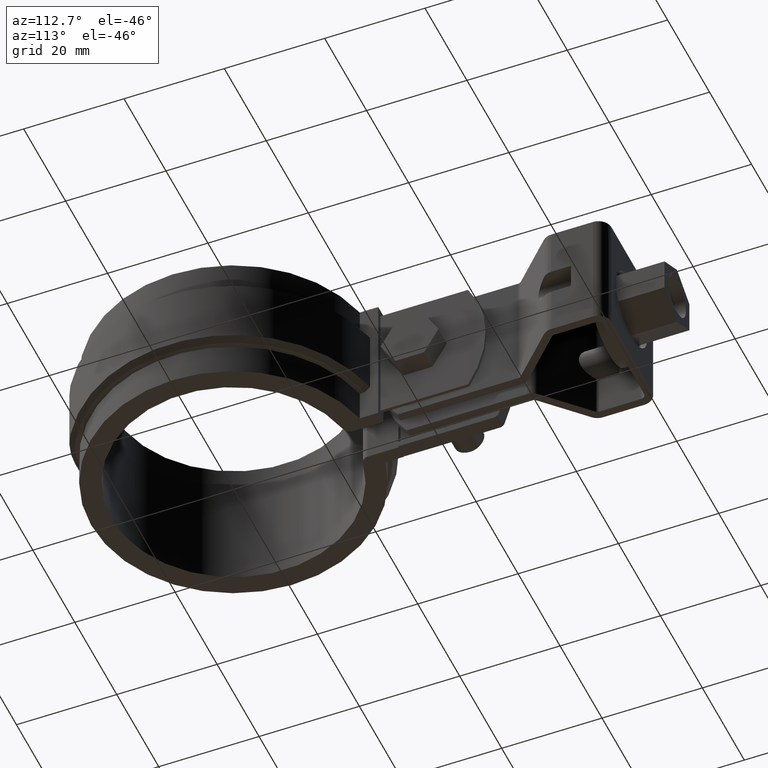
[diagram: clean part render]
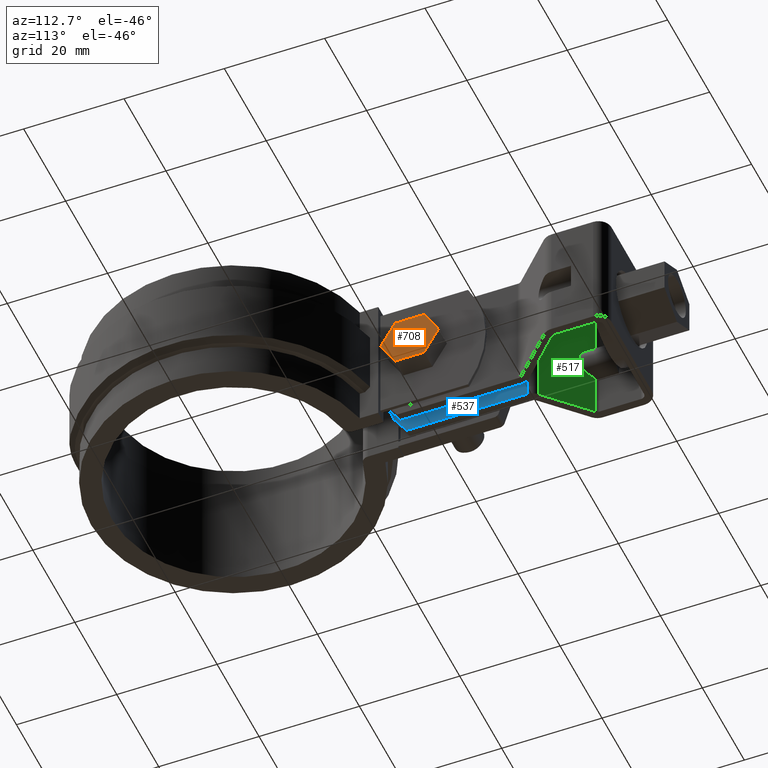
[diagram: same view with three faces highlighted in distinct colors, each labeled with its STEP entity id]
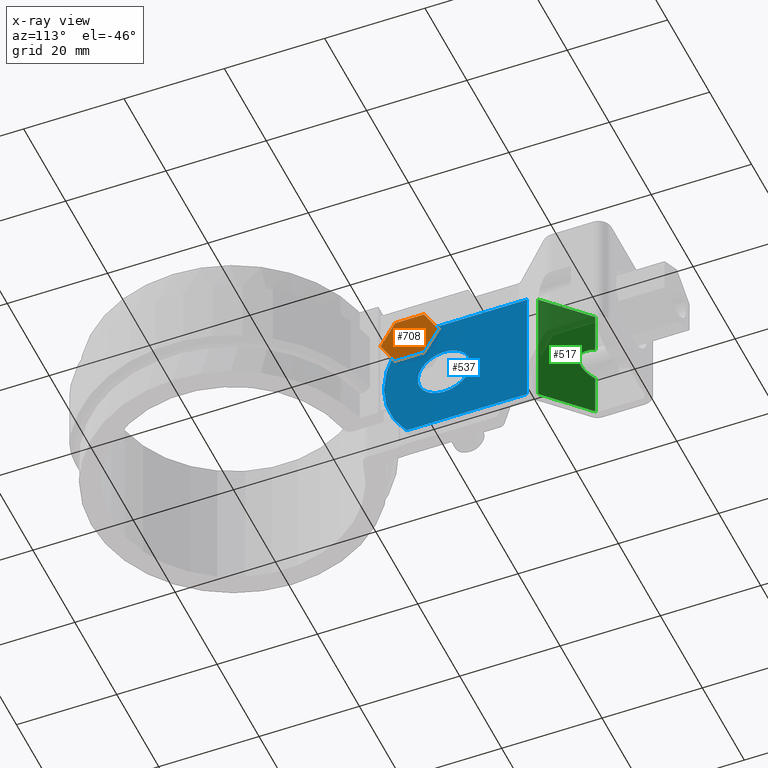
[diagram: x-ray of the same camera — body ghosted, the three highlighted faces saturated]
A machine part, auxiliary view with three faces highlighted in distinct colors.
The next image is the same camera in x-ray (body ghosted, the three faces saturated) — at least one of them is partly hidden behind the body in this view.
Their STEP definitions:

[orange] entity #708 — the highlighted planar face has unit normal (-1, 0, 0).
#708 = ADVANCED_FACE( '', ( #1454 ), #1455, .F. );
#1454 = FACE_OUTER_BOUND( '', #2971, .T. );
#1455 = PLANE( '', #2972 );
#2971 = EDGE_LOOP( '', ( #7569, #7570, #7571, #7572, #7573, #7574 ) );
#2972 = AXIS2_PLACEMENT_3D( '', #7575, #7576, #7577 );
#7569 = ORIENTED_EDGE( '', *, *, #8615, .T. );
#7570 = ORIENTED_EDGE( '', *, *, #8616, .T. );
#7571 = ORIENTED_EDGE( '', *, *, #8617, .T. );
#7572 = ORIENTED_EDGE( '', *, *, #8618, .T. );
#7573 = ORIENTED_EDGE( '', *, *, #8619, .T. );
#7574 = ORIENTED_EDGE( '', *, *, #8620, .T. );
#7575 = CARTESIAN_POINT( '', ( 9.10000000000000, 47.5647811934519, -7.50000000000000 ) );
#7576 = DIRECTION( '', ( -1.00000000000000, 1.30506089359675E-053, 4.17619485952193E-053 ) );
#7577 = DIRECTION( '', ( 1.30506089359675E-053, 1.00000000000000, 0.000000000000000 ) );
#8615 = EDGE_CURVE( '', #10263, #10264, #10265, .T. );
#8616 = EDGE_CURVE( '', #10264, #10266, #10267, .T. );
#8617 = EDGE_CURVE( '', #10266, #10268, #10269, .T. );
#8618 = EDGE_CURVE( '', #10268, #10270, #10271, .T. );
#8619 = EDGE_CURVE( '', #10270, #10272, #10273, .T. );
#8620 = EDGE_CURVE( '', #10272, #10263, #10274, .T. );
#10263 = VERTEX_POINT( '', #14867 );
#10264 = VERTEX_POINT( '', #14868 );
#10265 = LINE( '', #14869, #14870 );
#10266 = VERTEX_POINT( '', #14871 );
#10267 = LINE( '', #14872, #14873 );
#10268 = VERTEX_POINT( '', #14874 );
#10269 = LINE( '', #14875, #14876 );
#10270 = VERTEX_POINT( '', #14877 );
#10271 = LINE( '', #14878, #14879 );
#10272 = VERTEX_POINT( '', #14880 );
#10273 = LINE( '', #14881, #14882 );
#10274 = LINE( '', #14883, #14884 );
#14867 = CARTESIAN_POINT( '', ( 9.10000000000000, 41.7912785015556, -7.50000000000000 ) );
#14868 = CARTESIAN_POINT( '', ( 9.10000000000000, 36.0177758096594, -7.50000000000000 ) );
#14869 = CARTESIAN_POINT( '', ( 9.10000000000000, 41.7912785015556, -7.50000000000000 ) );
#14870 = VECTOR( '', #16120, 1000.00000000000 );
#14871 = CARTESIAN_POINT( '', ( 9.10000000000000, 33.1310244637112, -12.5000000000000 ) );
#14872 = CARTESIAN_POINT( '', ( 9.10000000000000, 36.0177758096594, -7.50000000000000 ) );
#14873 = VECTOR( '', #16121, 1000.00000000000 );
#14874 = CARTESIAN_POINT( '', ( 9.10000000000000, 36.0177758096594, -17.5000000000000 ) );
#14875 = CARTESIAN_POINT( '', ( 9.10000000000000, 33.1310244637112, -12.5000000000000 ) );
#14876 = VECTOR( '', #16122, 1000.00000000000 );
#14877 = CARTESIAN_POINT( '', ( 9.10000000000000, 41.7912785015556, -17.5000000000000 ) );
#14878 = CARTESIAN_POINT( '', ( 9.10000000000000, 36.0177758096594, -17.5000000000000 ) );
#14879 = VECTOR( '', #16123, 1000.00000000000 );
#14880 = CARTESIAN_POINT( '', ( 9.10000000000000, 44.6780298475038, -12.5000000000000 ) );
#14881 = CARTESIAN_POINT( '', ( 9.10000000000000, 41.7912785015556, -17.5000000000000 ) );
#14882 = VECTOR( '', #16124, 1000.00000000000 );
#14883 = CARTESIAN_POINT( '', ( 9.10000000000000, 44.6780298475038, -12.5000000000000 ) );
#14884 = VECTOR( '', #16125, 1000.00000000000 );
#16120 = DIRECTION( '', ( -1.30506089359675E-053, -1.00000000000000, -4.93038065763132E-032 ) );
#16121 = DIRECTION( '', ( -4.26922128629835E-053, -0.500000000000000, -0.866025403784439 ) );
#16122 = DIRECTION( '', ( -2.96416039270160E-053, 0.500000000000000, -0.866025403784438 ) );
#16123 = DIRECTION( '', ( 1.30506089359675E-053, 1.00000000000000, 3.00462919747432E-016 ) );
#16124 = DIRECTION( '', ( 4.26922128629835E-053, 0.500000000000000, 0.866025403784439 ) );
#16125 = DIRECTION( '', ( 2.96416039270160E-053, -0.500000000000000, 0.866025403784438 ) );

[blue] entity #537 — the highlighted planar face has unit normal (1, -0, -0).
#537 = ADVANCED_FACE( '', ( #1080, #1081 ), #1082, .T. );
#1080 = FACE_OUTER_BOUND( '', #2465, .T. );
#1081 = FACE_BOUND( '', #2466, .T. );
#1082 = PLANE( '', #2467 );
#2465 = EDGE_LOOP( '', ( #6156, #6157, #6158, #6159 ) );
#2466 = EDGE_LOOP( '', ( #6160 ) );
#2467 = AXIS2_PLACEMENT_3D( '', #6161, #6162, #6163 );
#6156 = ORIENTED_EDGE( '', *, *, #8095, .T. );
#6157 = ORIENTED_EDGE( '', *, *, #8174, .T. );
#6158 = ORIENTED_EDGE( '', *, *, #8062, .F. );
#6159 = ORIENTED_EDGE( '', *, *, #8175, .T. );
#6160 = ORIENTED_EDGE( '', *, *, #8176, .T. );
#6161 = CARTESIAN_POINT( '', ( -1.40000000052968, 29.4045271017870, -25.0000000461929 ) );
#6162 = DIRECTION( '', ( 1.00000000000000, -7.06610602874522E-024, -2.03772028768486E-012 ) );
#6163 = DIRECTION( '', ( 0.000000000000000, 1.00000000000000, -3.46765258777167E-012 ) );
#8062 = EDGE_CURVE( '', #9341, #9342, #9343, .F. );
#8095 = EDGE_CURVE( '', #9407, #9405, #9408, .T. );
#8174 = EDGE_CURVE( '', #9405, #9342, #9535, .T. );
#8175 = EDGE_CURVE( '', #9341, #9407, #9536, .T. );
#8176 = EDGE_CURVE( '', #9537, #9537, #9538, .F. );
#9341 = VERTEX_POINT( '', #13451 );
#9342 = VERTEX_POINT( '', #13452 );
#9343 = LINE( '', #13453, #13454 );
#9405 = VERTEX_POINT( '', #13534 );
#9407 = VERTEX_POINT( '', #13536 );
#9408 = LINE( '', #13537, #13538 );
#9535 = LINE( '', #13749, #13750 );
#9536 = CIRCLE( '', #13751, 19.6111110000000 );
#9537 = VERTEX_POINT( '', #13752 );
#9538 = CIRCLE( '', #13753, 5.25000000000000 );
#13451 = CARTESIAN_POINT( '', ( -1.40000000047874, 33.9045271475964, -4.84827106257089E-008 ) );
#13452 = CARTESIAN_POINT( '', ( -1.40000000052825, 57.9586734887999, -6.07228087597351E-008 ) );
#13453 = CARTESIAN_POINT( '', ( -1.40000000047874, 76.8045271144796, -7.03126354039465E-008 ) );
#13454 = VECTOR( '', #15333, 1000.00000000000 );
#13534 = CARTESIAN_POINT( '', ( -1.40000000057919, 57.9586734760785, -25.0000000607228 ) );
#13536 = CARTESIAN_POINT( '', ( -1.40000000052968, 33.9045271348750, -25.0000000484827 ) );
#13537 = CARTESIAN_POINT( '', ( -1.40000000052968, 29.4045271017870, -25.0000000461928 ) );
#13538 = VECTOR( '', #15394, 1000.00000000000 );
#13749 = CARTESIAN_POINT( '', ( -1.40000000062870, 57.9586734760830, -25.0000000607228 ) );
#13750 = VECTOR( '', #15520, 1000.00000000000 );
#13751 = AXIS2_PLACEMENT_3D( '', #15521, #15522, #15523 );
#13752 = CARTESIAN_POINT( '', ( -1.40000000051490, 41.4045271081475, -17.7500000522991 ) );
#13753 = AXIS2_PLACEMENT_3D( '', #15524, #15525, #15526 );
#15333 = DIRECTION( '', ( 1.02984022804732E-021, -1.00000000000000, 5.08856068393049E-010 ) );
#15394 = DIRECTION( '', ( -1.02984022804732E-021, 1.00000000000000, -5.08856068393049E-010 ) );
#15520 = DIRECTION( '', ( 2.03772028593234E-012, 5.08856008656157E-010, 1.00000000000000 ) );
#15521 = CARTESIAN_POINT( '', ( -1.40000000050421, 49.0156381081475, -12.5000000561720 ) );
#15522 = DIRECTION( '', ( 1.00000000000000, -7.06610602874522E-024, -2.03772028768486E-012 ) );
#15523 = DIRECTION( '', ( -2.03772028768486E-012, 0.000000000000000, -1.00000000000000 ) );
#15524 = CARTESIAN_POINT( '', ( -1.40000000050421, 41.4045271081475, -12.5000000522991 ) );
#15525 = DIRECTION( '', ( 1.00000000000000, -7.06610602874522E-024, -2.03772028768486E-012 ) );
#15526 = DIRECTION( '', ( -2.03772028768486E-012, 0.000000000000000, -1.00000000000000 ) );

[green] entity #517 — the highlighted planar face has unit normal (0.6983, 0.7158, -0).
#517 = ADVANCED_FACE( '', ( #1036 ), #1037, .T. );
#1036 = FACE_OUTER_BOUND( '', #2421, .T. );
#1037 = PLANE( '', #2422 );
#2421 = EDGE_LOOP( '', ( #6004, #6005, #6006, #6007, #6008, #6009 ) );
#2422 = AXIS2_PLACEMENT_3D( '', #6010, #6011, #6012 );
#6004 = ORIENTED_EDGE( '', *, *, #8064, .T. );
#6005 = ORIENTED_EDGE( '', *, *, #8136, .T. );
#6006 = ORIENTED_EDGE( '', *, *, #8093, .F. );
#6007 = ORIENTED_EDGE( '', *, *, #8137, .F. );
#6008 = ORIENTED_EDGE( '', *, *, #8138, .F. );
#6009 = ORIENTED_EDGE( '', *, *, #8139, .F. );
#6010 = CARTESIAN_POINT( '', ( -10.3483238361423, 67.7845509188487, -6.57045390317634E-008 ) );
#6011 = DIRECTION( '', ( 0.698323835528018, 0.715781964520927, -3.65652942179987E-010 ) );
#6012 = DIRECTION( '', ( -5.23615153281298E-010, -3.70050602416769E-026, -1.00000000000000 ) );
#8064 = EDGE_CURVE( '', #9346, #9344, #9347, .F. );
#8093 = EDGE_CURVE( '', #9402, #9403, #9404, .T. );
#8136 = EDGE_CURVE( '', #9344, #9403, #9480, .T. );
#8137 = EDGE_CURVE( '', #9481, #9402, #9482, .T. );
#8138 = EDGE_CURVE( '', #9483, #9481, #9484, .T. );
#8139 = EDGE_CURVE( '', #9346, #9483, #9485, .T. );
#9344 = VERTEX_POINT( '', #13455 );
#9346 = VERTEX_POINT( '', #13457 );
#9347 = LINE( '', #13458, #13459 );
#9402 = VERTEX_POINT( '', #13530 );
#9403 = VERTEX_POINT( '', #13531 );
#9404 = LINE( '', #13532, #13533 );
#9480 = LINE( '', #13648, #13649 );
#9481 = VERTEX_POINT( '', #13650 );
#9482 = LINE( '', #13651, #13652 );
#9483 = VERTEX_POINT( '', #13653 );
#9484 = ELLIPSE( '', #13654, 5.93756228945900, 4.24999999999996 );
#9485 = LINE( '', #13655, #13656 );
#13455 = CARTESIAN_POINT( '', ( -2.18435802820491, 59.8197065965498, -6.16682085298829E-008 ) );
#13457 = CARTESIAN_POINT( '', ( -10.3483238361423, 67.7845509188487, -6.57045321469425E-008 ) );
#13458 = CARTESIAN_POINT( '', ( -10.3483238361423, 67.7845509188487, -6.57045321469425E-008 ) );
#13459 = VECTOR( '', #15337, 1000.00000000000 );
#13530 = CARTESIAN_POINT( '', ( -10.3483238361932, 67.7845509061273, -25.0000000657045 ) );
#13531 = CARTESIAN_POINT( '', ( -2.18435802825585, 59.8197065838284, -25.0000000616682 ) );
#13532 = CARTESIAN_POINT( '', ( -14.4991554495791, 71.8341425367722, -25.0000000677567 ) );
#13533 = VECTOR( '', #15390, 1000.00000000000 );
#13648 = CARTESIAN_POINT( '', ( -2.18435802820491, 59.8197065965498, -6.16682122034362E-008 ) );
#13649 = VECTOR( '', #15465, 1000.00000000000 );
#13650 = CARTESIAN_POINT( '', ( -10.3483238361756, 67.7845509105539, -16.3008062651165 ) );
#13651 = CARTESIAN_POINT( '', ( -10.3483238361423, 67.7845509188487, -6.57045390317634E-008 ) );
#13652 = VECTOR( '', #15466, 1000.00000000000 );
#13653 = CARTESIAN_POINT( '', ( -10.3483238361601, 67.7845509144221, -8.69919386629256 ) );
#13654 = AXIS2_PLACEMENT_3D( '', #15467, #15468, #15469 );
#13655 = CARTESIAN_POINT( '', ( -10.3483238361423, 67.7845509188487, -6.57045390317634E-008 ) );
#13656 = VECTOR( '', #15470, 1000.00000000000 );
#15337 = DIRECTION( '', ( -0.715781964520927, 0.698323835528018, -3.53887801810090E-010 ) );
#15390 = DIRECTION( '', ( 0.715781964520927, -0.698323835528018, 3.53887801810090E-010 ) );
#15465 = DIRECTION( '', ( -2.03772028593234E-012, -5.08856008656157E-010, -1.00000000000000 ) );
#15466 = DIRECTION( '', ( -2.03765905561465E-012, -5.08856068393049E-010, -1.00000000000000 ) );
#15467 = CARTESIAN_POINT( '', ( -12.2500000006437, 69.6398446456821, -12.5000000666447 ) );
#15468 = DIRECTION( '', ( 0.698323835528018, 0.715781964520927, -3.65652942179987E-010 ) );
#15469 = DIRECTION( '', ( 0.715781964520927, -0.698323835528018, 3.53887801810090E-010 ) );
#15470 = DIRECTION( '', ( -2.03765905561465E-012, -5.08856068393049E-010, -1.00000000000000 ) );